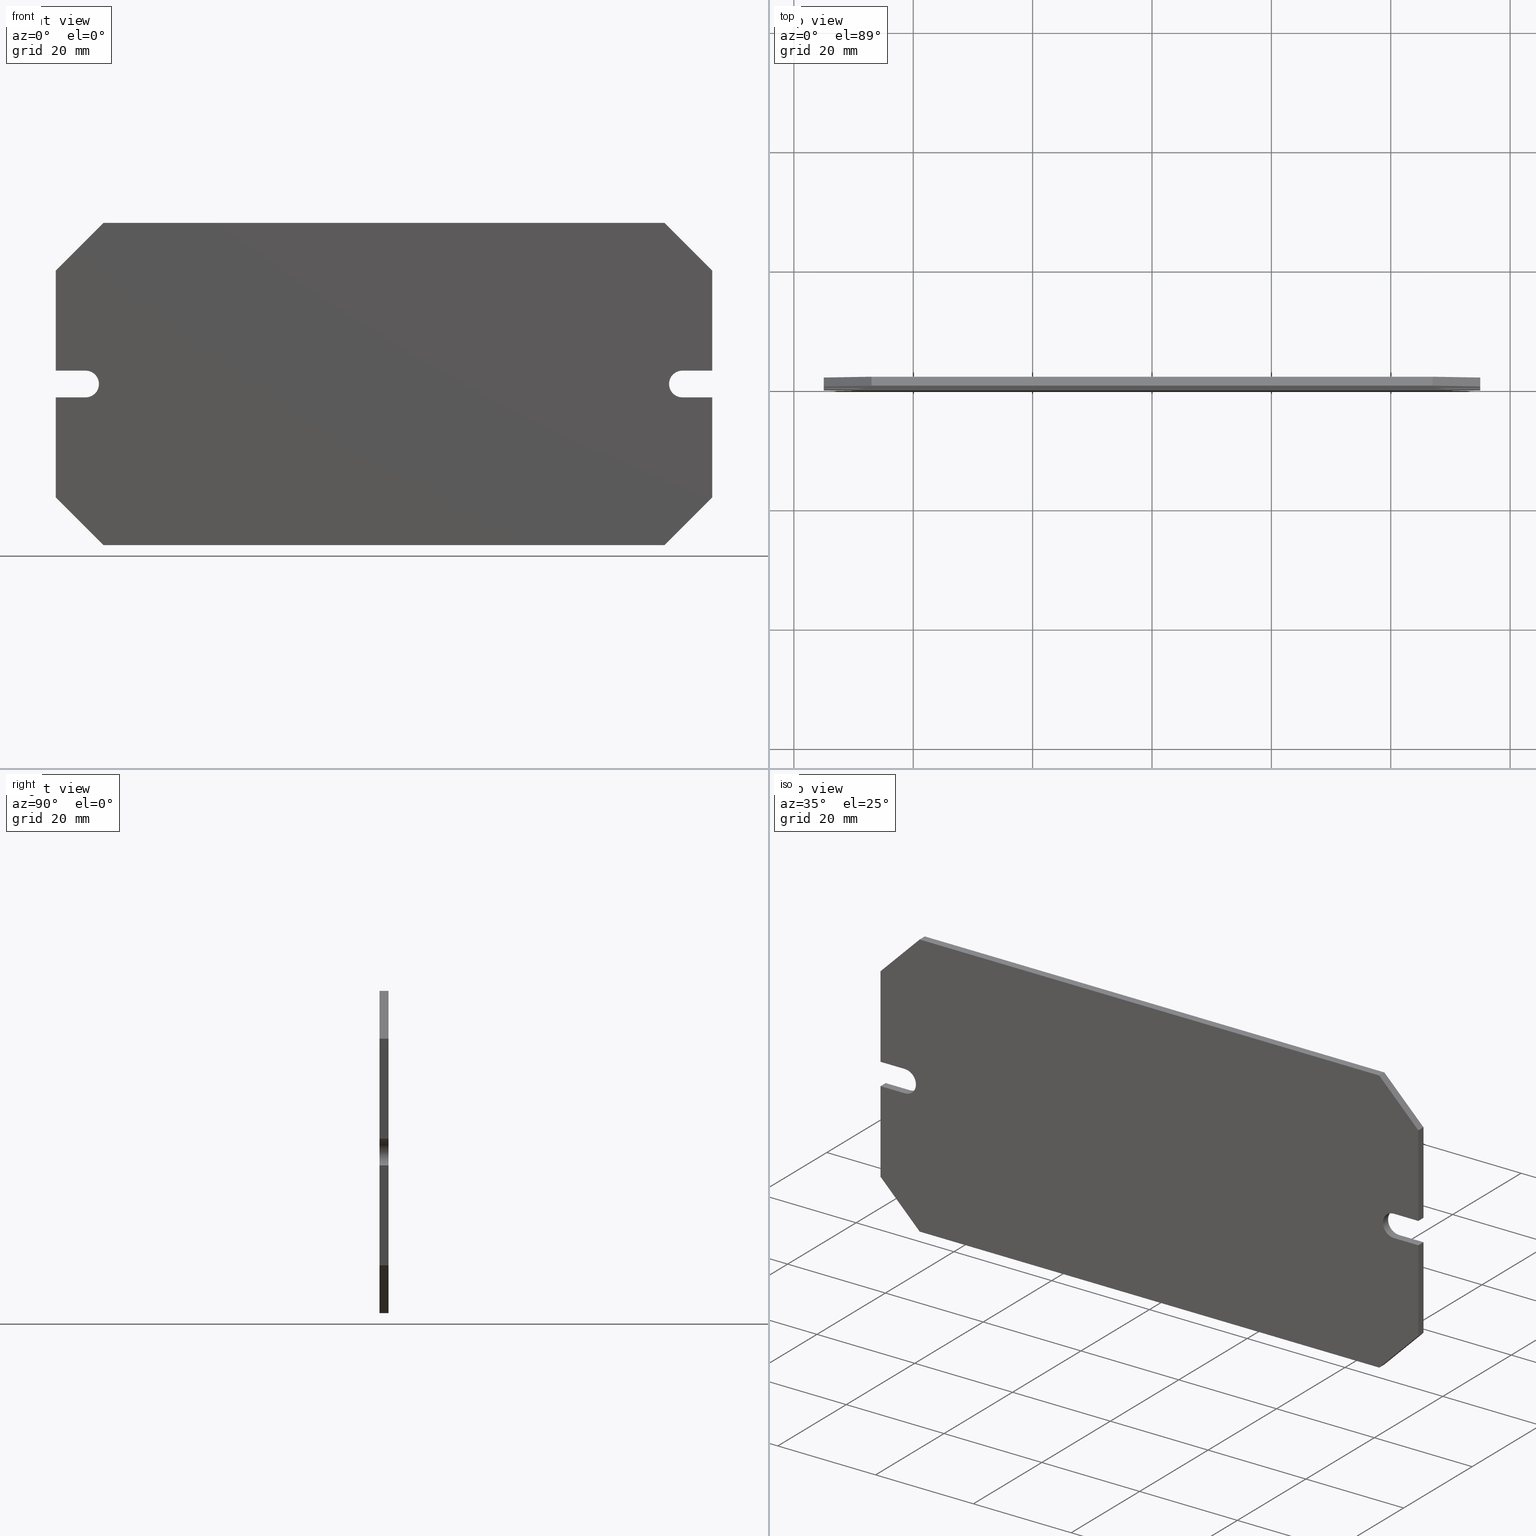
[diagram: canonical four-view strip — front | top / right | iso, engineering-drawing reading convention]
A machine part, canonical four-view strip (front | top / right | iso — engineering-drawing reading convention). The complete STEP part file that produces these views, byte-faithful:
ISO-10303-21;
HEADER;
FILE_DESCRIPTION (( 'STEP AP214' ),
    '1' );
FILE_NAME ('C-MP.STEP',
    '2010-02-17T13:13:29',
    ( 'KennethW' ),
    ( 'FIBOX' ),
    'SwSTEP 2.0',
    'SolidWorks 2009',
    '' );
FILE_SCHEMA (( 'AUTOMOTIVE_DESIGN' ));
ENDSEC;

DATA;
#1 = ORIENTED_EDGE ( 'NONE', *, *, #195, .F. ) ;
#2 = ORIENTED_EDGE ( 'NONE', *, *, #152, .F. ) ;
#3 = ORIENTED_EDGE ( 'NONE', *, *, #67, .F. ) ;
#4 = CLOSED_SHELL ( 'NONE', ( #48, #71, #55, #37, #13, #15, #98, #110, #107, #102, #125, #160, #139, #155, #207, #204, #172, #180 ) ) ;
#5 = ORIENTED_EDGE ( 'NONE', *, *, #85, .F. ) ;
#6 = ORIENTED_EDGE ( 'NONE', *, *, #96, .F. ) ;
#7 = ORIENTED_EDGE ( 'NONE', *, *, #23, .F. ) ;
#8 = ORIENTED_EDGE ( 'NONE', *, *, #30, .F. ) ;
#9 = ORIENTED_EDGE ( 'NONE', *, *, #47, .F. ) ;
#10 = ORIENTED_EDGE ( 'NONE', *, *, #50, .F. ) ;
#11 = EDGE_LOOP ( 'NONE', ( #10, #12, #1, #2, #165, #166, #167, #168, #169, #14, #5, #6, #7, #8, #9, #3 ) ) ;
#12 = ORIENTED_EDGE ( 'NONE', *, *, #181, .F. ) ;
#13 = ADVANCED_FACE ( 'NONE', ( #344 ), #343, .F. ) ;
#14 = ORIENTED_EDGE ( 'NONE', *, *, #93, .F. ) ;
#15 = ADVANCED_FACE ( 'NONE', ( #349 ), #348, .F. ) ;
#16 = ORIENTED_EDGE ( 'NONE', *, *, #34, .T. ) ;
#17 = ORIENTED_EDGE ( 'NONE', *, *, #23, .T. ) ;
#18 = EDGE_CURVE ( 'NONE', #41, #33, #374, .T. ) ;
#19 = EDGE_CURVE ( 'NONE', #33, #26, #338, .T. ) ;
#20 = ORIENTED_EDGE ( 'NONE', *, *, #42, .T. ) ;
#21 = EDGE_LOOP ( 'NONE', ( #17, #25, #24, #16 ) ) ;
#22 = EDGE_LOOP ( 'NONE', ( #97, #91, #73, #75 ) ) ;
#23 = EDGE_CURVE ( 'NONE', #29, #28, #334, .T. ) ;
#24 = ORIENTED_EDGE ( 'NONE', *, *, #19, .F. ) ;
#25 = ORIENTED_EDGE ( 'NONE', *, *, #27, .F. ) ;
#26 = VERTEX_POINT ( 'NONE', #330 ) ;
#27 = EDGE_CURVE ( 'NONE', #26, #28, #329, .T. ) ;
#28 = VERTEX_POINT ( 'NONE', #325 ) ;
#29 = VERTEX_POINT ( 'NONE', #324 ) ;
#30 = EDGE_CURVE ( 'NONE', #39, #29, #323, .T. ) ;
#31 = ORIENTED_EDGE ( 'NONE', *, *, #30, .T. ) ;
#32 = ORIENTED_EDGE ( 'NONE', *, *, #18, .F. ) ;
#33 = VERTEX_POINT ( 'NONE', #384 ) ;
#34 = EDGE_CURVE ( 'NONE', #33, #29, #383, .T. ) ;
#35 = ORIENTED_EDGE ( 'NONE', *, *, #34, .F. ) ;
#36 = ORIENTED_EDGE ( 'NONE', *, *, #68, .T. ) ;
#37 = ADVANCED_FACE ( 'NONE', ( #379 ), #377, .F. ) ;
#38 = EDGE_LOOP ( 'NONE', ( #31, #35, #32, #20 ) ) ;
#39 = VERTEX_POINT ( 'NONE', #368 ) ;
#40 = ORIENTED_EDGE ( 'NONE', *, *, #42, .F. ) ;
#41 = VERTEX_POINT ( 'NONE', #367 ) ;
#42 = EDGE_CURVE ( 'NONE', #41, #39, #366, .T. ) ;
#43 = EDGE_CURVE ( 'NONE', #64, #41, #362, .T. ) ;
#44 = ORIENTED_EDGE ( 'NONE', *, *, #43, .F. ) ;
#45 = ORIENTED_EDGE ( 'NONE', *, *, #47, .T. ) ;
#46 = EDGE_LOOP ( 'NONE', ( #45, #40, #44, #36 ) ) ;
#47 = EDGE_CURVE ( 'NONE', #62, #39, #358, .T. ) ;
#48 = ADVANCED_FACE ( 'NONE', ( #354 ), #353, .F. ) ;
#49 = ORIENTED_EDGE ( 'NONE', *, *, #50, .T. ) ;
#50 = EDGE_CURVE ( 'NONE', #51, #52, #277, .T. ) ;
#51 = VERTEX_POINT ( 'NONE', #250 ) ;
#52 = VERTEX_POINT ( 'NONE', #276 ) ;
#53 = ORIENTED_EDGE ( 'NONE', *, *, #58, .F. ) ;
#54 = ORIENTED_EDGE ( 'NONE', *, *, #58, .T. ) ;
#55 = ADVANCED_FACE ( 'NONE', ( #275 ), #274, .F. ) ;
#56 = ORIENTED_EDGE ( 'NONE', *, *, #74, .F. ) ;
#57 = VERTEX_POINT ( 'NONE', #266 ) ;
#58 = EDGE_CURVE ( 'NONE', #59, #52, #270, .T. ) ;
#59 = VERTEX_POINT ( 'NONE', #264 ) ;
#60 = EDGE_LOOP ( 'NONE', ( #49, #53, #56, #76 ) ) ;
#61 = MANIFOLD_SOLID_BREP ( 'NONE', #4 ) ;
#62 = VERTEX_POINT ( 'NONE', #299 ) ;
#63 = ORIENTED_EDGE ( 'NONE', *, *, #68, .F. ) ;
#64 = VERTEX_POINT ( 'NONE', #282 ) ;
#65 = EDGE_LOOP ( 'NONE', ( #66, #63, #72, #54 ) ) ;
#66 = ORIENTED_EDGE ( 'NONE', *, *, #67, .T. ) ;
#67 = EDGE_CURVE ( 'NONE', #52, #62, #289, .T. ) ;
#68 = EDGE_CURVE ( 'NONE', #64, #62, #295, .T. ) ;
#69 = EDGE_CURVE ( 'NONE', #59, #64, #297, .T. ) ;
#70 = EDGE_CURVE ( 'NONE', #57, #51, #286, .T. ) ;
#71 = ADVANCED_FACE ( 'NONE', ( #314 ), #319, .F. ) ;
#72 = ORIENTED_EDGE ( 'NONE', *, *, #69, .F. ) ;
#73 = ORIENTED_EDGE ( 'NONE', *, *, #78, .F. ) ;
#74 = EDGE_CURVE ( 'NONE', #57, #59, #316, .T. ) ;
#75 = ORIENTED_EDGE ( 'NONE', *, *, #27, .T. ) ;
#76 = ORIENTED_EDGE ( 'NONE', *, *, #70, .T. ) ;
#77 = VERTEX_POINT ( 'NONE', #490 ) ;
#78 = EDGE_CURVE ( 'NONE', #26, #90, #493, .T. ) ;
#79 = EDGE_CURVE ( 'NONE', #112, #80, #502, .T. ) ;
#80 = VERTEX_POINT ( 'NONE', #494 ) ;
#81 = ORIENTED_EDGE ( 'NONE', *, *, #82, .F. ) ;
#82 = EDGE_CURVE ( 'NONE', #77, #80, #500, .T. ) ;
#83 = EDGE_LOOP ( 'NONE', ( #84, #99, #108, #109 ) ) ;
#84 = ORIENTED_EDGE ( 'NONE', *, *, #85, .T. ) ;
#85 = EDGE_CURVE ( 'NONE', #95, #86, #503, .T. ) ;
#86 = VERTEX_POINT ( 'NONE', #534 ) ;
#87 = ORIENTED_EDGE ( 'NONE', *, *, #88, .F. ) ;
#88 = EDGE_CURVE ( 'NONE', #130, #117, #506, .T. ) ;
#89 = EDGE_CURVE ( 'NONE', #90, #95, #504, .T. ) ;
#90 = VERTEX_POINT ( 'NONE', #513 ) ;
#91 = ORIENTED_EDGE ( 'NONE', *, *, #89, .F. ) ;
#92 = ORIENTED_EDGE ( 'NONE', *, *, #79, .T. ) ;
#93 = EDGE_CURVE ( 'NONE', #86, #94, #516, .T. ) ;
#94 = VERTEX_POINT ( 'NONE', #510 ) ;
#95 = VERTEX_POINT ( 'NONE', #509 ) ;
#96 = EDGE_CURVE ( 'NONE', #28, #95, #535, .T. ) ;
#97 = ORIENTED_EDGE ( 'NONE', *, *, #96, .T. ) ;
#98 = ADVANCED_FACE ( 'NONE', ( #528 ), #527, .F. ) ;
#99 = ORIENTED_EDGE ( 'NONE', *, *, #115, .F. ) ;
#100 = VERTEX_POINT ( 'NONE', #521 ) ;
#101 = EDGE_LOOP ( 'NONE', ( #92, #81, #126, #145 ) ) ;
#102 = ADVANCED_FACE ( 'NONE', ( #520 ), #508, .F. ) ;
#103 = ORIENTED_EDGE ( 'NONE', *, *, #127, .T. ) ;
#104 = ORIENTED_EDGE ( 'NONE', *, *, #93, .T. ) ;
#105 = ORIENTED_EDGE ( 'NONE', *, *, #115, .T. ) ;
#106 = EDGE_LOOP ( 'NONE', ( #104, #129, #131, #105 ) ) ;
#107 = ADVANCED_FACE ( 'NONE', ( #536 ), #542, .F. ) ;
#108 = ORIENTED_EDGE ( 'NONE', *, *, #114, .F. ) ;
#109 = ORIENTED_EDGE ( 'NONE', *, *, #89, .T. ) ;
#110 = ADVANCED_FACE ( 'NONE', ( #543 ), #541, .F. ) ;
#111 = ORIENTED_EDGE ( 'NONE', *, *, #119, .T. ) ;
#112 = VERTEX_POINT ( 'NONE', #546 ) ;
#113 = ORIENTED_EDGE ( 'NONE', *, *, #116, .F. ) ;
#114 = EDGE_CURVE ( 'NONE', #90, #100, #550, .T. ) ;
#115 = EDGE_CURVE ( 'NONE', #100, #86, #596, .T. ) ;
#116 = EDGE_CURVE ( 'NONE', #117, #112, #602, .T. ) ;
#117 = VERTEX_POINT ( 'NONE', #591 ) ;
#118 = EDGE_LOOP ( 'NONE', ( #111, #113, #87, #103 ) ) ;
#119 = EDGE_CURVE ( 'NONE', #94, #112, #590, .T. ) ;
#120 = EDGE_CURVE ( 'NONE', #100, #130, #600, .T. ) ;
#121 = ORIENTED_EDGE ( 'NONE', *, *, #133, .F. ) ;
#122 = EDGE_CURVE ( 'NONE', #80, #143, #586, .T. ) ;
#123 = ORIENTED_EDGE ( 'NONE', *, *, #157, .F. ) ;
#124 = ORIENTED_EDGE ( 'NONE', *, *, #122, .T. ) ;
#125 = ADVANCED_FACE ( 'NONE', ( #582 ), #570, .F. ) ;
#126 = ORIENTED_EDGE ( 'NONE', *, *, #128, .F. ) ;
#127 = EDGE_CURVE ( 'NONE', #130, #94, #565, .T. ) ;
#128 = EDGE_CURVE ( 'NONE', #117, #77, #580, .T. ) ;
#129 = ORIENTED_EDGE ( 'NONE', *, *, #127, .F. ) ;
#130 = VERTEX_POINT ( 'NONE', #576 ) ;
#131 = ORIENTED_EDGE ( 'NONE', *, *, #120, .F. ) ;
#132 = EDGE_LOOP ( 'NONE', ( #134, #140, #220, #136 ) ) ;
#133 = EDGE_CURVE ( 'NONE', #158, #138, #575, .T. ) ;
#134 = ORIENTED_EDGE ( 'NONE', *, *, #224, .T. ) ;
#135 = ORIENTED_EDGE ( 'NONE', *, *, #157, .T. ) ;
#136 = ORIENTED_EDGE ( 'NONE', *, *, #137, .T. ) ;
#137 = EDGE_CURVE ( 'NONE', #138, #221, #571, .T. ) ;
#138 = VERTEX_POINT ( 'NONE', #558 ) ;
#139 = ADVANCED_FACE ( 'NONE', ( #557 ), #556, .F. ) ;
#140 = ORIENTED_EDGE ( 'NONE', *, *, #142, .F. ) ;
#141 = VERTEX_POINT ( 'NONE', #209 ) ;
#142 = EDGE_CURVE ( 'NONE', #141, #219, #214, .T. ) ;
#143 = VERTEX_POINT ( 'NONE', #215 ) ;
#144 = EDGE_LOOP ( 'NONE', ( #124, #123, #162, #163 ) ) ;
#145 = ORIENTED_EDGE ( 'NONE', *, *, #116, .T. ) ;
#146 = EDGE_LOOP ( 'NONE', ( #201, #197, #198, #200 ) ) ;
#147 = EDGE_CURVE ( 'NONE', #150, #156, #210, .T. ) ;
#148 = ORIENTED_EDGE ( 'NONE', *, *, #147, .F. ) ;
#149 = EDGE_CURVE ( 'NONE', #141, #150, #234, .T. ) ;
#150 = VERTEX_POINT ( 'NONE', #235 ) ;
#151 = ORIENTED_EDGE ( 'NONE', *, *, #142, .T. ) ;
#152 = EDGE_CURVE ( 'NONE', #219, #156, #239, .T. ) ;
#153 = ORIENTED_EDGE ( 'NONE', *, *, #152, .T. ) ;
#154 = EDGE_LOOP ( 'NONE', ( #153, #148, #206, #151 ) ) ;
#155 = ADVANCED_FACE ( 'NONE', ( #241 ), #240, .F. ) ;
#156 = VERTEX_POINT ( 'NONE', #237 ) ;
#157 = EDGE_CURVE ( 'NONE', #158, #143, #230, .T. ) ;
#158 = VERTEX_POINT ( 'NONE', #226 ) ;
#159 = ORIENTED_EDGE ( 'NONE', *, *, #208, .T. ) ;
#160 = ADVANCED_FACE ( 'NONE', ( #225 ), #306, .F. ) ;
#161 = EDGE_LOOP ( 'NONE', ( #159, #222, #121, #135 ) ) ;
#162 = ORIENTED_EDGE ( 'NONE', *, *, #164, .F. ) ;
#163 = ORIENTED_EDGE ( 'NONE', *, *, #82, .T. ) ;
#164 = EDGE_CURVE ( 'NONE', #77, #158, #416, .T. ) ;
#165 = ORIENTED_EDGE ( 'NONE', *, *, #224, .F. ) ;
#166 = ORIENTED_EDGE ( 'NONE', *, *, #208, .F. ) ;
#167 = ORIENTED_EDGE ( 'NONE', *, *, #122, .F. ) ;
#168 = ORIENTED_EDGE ( 'NONE', *, *, #79, .F. ) ;
#169 = ORIENTED_EDGE ( 'NONE', *, *, #119, .F. ) ;
#170 = ORIENTED_EDGE ( 'NONE', *, *, #69, .T. ) ;
#171 = ORIENTED_EDGE ( 'NONE', *, *, #205, .T. ) ;
#172 = ADVANCED_FACE ( 'NONE', ( #412 ), #410, .T. ) ;
#173 = ORIENTED_EDGE ( 'NONE', *, *, #128, .T. ) ;
#174 = ORIENTED_EDGE ( 'NONE', *, *, #19, .T. ) ;
#175 = ORIENTED_EDGE ( 'NONE', *, *, #181, .T. ) ;
#176 = ORIENTED_EDGE ( 'NONE', *, *, #74, .T. ) ;
#177 = ORIENTED_EDGE ( 'NONE', *, *, #149, .T. ) ;
#178 = ORIENTED_EDGE ( 'NONE', *, *, #203, .T. ) ;
#179 = ORIENTED_EDGE ( 'NONE', *, *, #185, .T. ) ;
#180 = ADVANCED_FACE ( 'NONE', ( #405 ), #411, .F. ) ;
#181 = EDGE_CURVE ( 'NONE', #202, #51, #402, .T. ) ;
#182 = ORIENTED_EDGE ( 'NONE', *, *, #18, .T. ) ;
#183 = ORIENTED_EDGE ( 'NONE', *, *, #185, .F. ) ;
#184 = ORIENTED_EDGE ( 'NONE', *, *, #223, .T. ) ;
#185 = EDGE_CURVE ( 'NONE', #199, #57, #396, .T. ) ;
#186 = EDGE_LOOP ( 'NONE', ( #176, #170, #188, #182, #174, #187, #193, #190, #191, #173, #194, #189, #184, #177, #178, #179 ) ) ;
#187 = ORIENTED_EDGE ( 'NONE', *, *, #78, .T. ) ;
#188 = ORIENTED_EDGE ( 'NONE', *, *, #43, .T. ) ;
#189 = ORIENTED_EDGE ( 'NONE', *, *, #133, .T. ) ;
#190 = ORIENTED_EDGE ( 'NONE', *, *, #120, .T. ) ;
#191 = ORIENTED_EDGE ( 'NONE', *, *, #88, .T. ) ;
#192 = ORIENTED_EDGE ( 'NONE', *, *, #70, .F. ) ;
#193 = ORIENTED_EDGE ( 'NONE', *, *, #114, .T. ) ;
#194 = ORIENTED_EDGE ( 'NONE', *, *, #164, .T. ) ;
#195 = EDGE_CURVE ( 'NONE', #156, #202, #392, .T. ) ;
#196 = EDGE_LOOP ( 'NONE', ( #175, #192, #183, #171 ) ) ;
#197 = ORIENTED_EDGE ( 'NONE', *, *, #205, .F. ) ;
#198 = ORIENTED_EDGE ( 'NONE', *, *, #203, .F. ) ;
#199 = VERTEX_POINT ( 'NONE', #387 ) ;
#200 = ORIENTED_EDGE ( 'NONE', *, *, #147, .T. ) ;
#201 = ORIENTED_EDGE ( 'NONE', *, *, #195, .T. ) ;
#202 = VERTEX_POINT ( 'NONE', #448 ) ;
#203 = EDGE_CURVE ( 'NONE', #150, #199, #447, .T. ) ;
#204 = ADVANCED_FACE ( 'NONE', ( #442 ), #441, .F. ) ;
#205 = EDGE_CURVE ( 'NONE', #199, #202, #436, .T. ) ;
#206 = ORIENTED_EDGE ( 'NONE', *, *, #149, .F. ) ;
#207 = ADVANCED_FACE ( 'NONE', ( #432 ), #431, .F. ) ;
#208 = EDGE_CURVE ( 'NONE', #143, #221, #426, .T. ) ;
#209 = CARTESIAN_POINT ( 'NONE',  ( -55.00000000000000000, 1.500000000000000000, -2.249999999999981300 ) ) ;
#210 = LINE ( 'NONE', #218, #217 ) ;
#211 = DIRECTION ( 'NONE',  ( -0.0000000000000000000, -1.000000000000000000, -0.0000000000000000000 ) ) ;
#212 = VECTOR ( 'NONE', #211, 1000.000000000000000 ) ;
#213 = CARTESIAN_POINT ( 'NONE',  ( -55.00000000000000000, 1.500000000000000000, -2.249999999999981300 ) ) ;
#214 = LINE ( 'NONE', #213, #212 ) ;
#215 = CARTESIAN_POINT ( 'NONE',  ( -46.99999999999997900, 0.0000000000000000000, -26.99999999999997900 ) ) ;
#216 = DIRECTION ( 'NONE',  ( -0.0000000000000000000, -1.000000000000000000, -0.0000000000000000000 ) ) ;
#217 = VECTOR ( 'NONE', #216, 1000.000000000000000 ) ;
#218 = CARTESIAN_POINT ( 'NONE',  ( -49.99999999999999300, 1.500000000000000000, -2.249999999999975600 ) ) ;
#219 = VERTEX_POINT ( 'NONE', #422 ) ;
#220 = ORIENTED_EDGE ( 'NONE', *, *, #223, .F. ) ;
#221 = VERTEX_POINT ( 'NONE', #421 ) ;
#222 = ORIENTED_EDGE ( 'NONE', *, *, #137, .F. ) ;
#223 = EDGE_CURVE ( 'NONE', #138, #141, #420, .T. ) ;
#224 = EDGE_CURVE ( 'NONE', #221, #219, #470, .T. ) ;
#225 = FACE_OUTER_BOUND ( 'NONE', #161, .T. ) ;
#226 = CARTESIAN_POINT ( 'NONE',  ( -46.99999999999997900, 1.500000000000000000, -26.99999999999997900 ) ) ;
#227 = DIRECTION ( 'NONE',  ( -0.0000000000000000000, -1.000000000000000000, -0.0000000000000000000 ) ) ;
#228 = VECTOR ( 'NONE', #227, 1000.000000000000000 ) ;
#229 = CARTESIAN_POINT ( 'NONE',  ( -46.99999999999997900, 1.500000000000000000, -26.99999999999997900 ) ) ;
#230 = LINE ( 'NONE', #229, #228 ) ;
#231 = DIRECTION ( 'NONE',  ( 1.000000000000000000, 0.0000000000000000000, 0.0000000000000000000 ) ) ;
#232 = VECTOR ( 'NONE', #231, 1000.000000000000000 ) ;
#233 = CARTESIAN_POINT ( 'NONE',  ( -55.00000000000000000, 1.500000000000000000, -2.249999999999981300 ) ) ;
#234 = LINE ( 'NONE', #233, #232 ) ;
#235 = CARTESIAN_POINT ( 'NONE',  ( -49.99999999999999300, 1.500000000000000000, -2.249999999999975600 ) ) ;
#236 = AXIS2_PLACEMENT_3D ( 'NONE', #245, #246, #238 ) ;
#237 = CARTESIAN_POINT ( 'NONE',  ( -49.99999999999999300, 0.0000000000000000000, -2.249999999999975600 ) ) ;
#238 = DIRECTION ( 'NONE',  ( -1.000000000000000000, 0.0000000000000000000, -0.0000000000000000000 ) ) ;
#239 = LINE ( 'NONE', #244, #243 ) ;
#240 = PLANE ( 'NONE',  #236 ) ;
#241 = FACE_OUTER_BOUND ( 'NONE', #154, .T. ) ;
#242 = DIRECTION ( 'NONE',  ( 1.000000000000000000, 0.0000000000000000000, 0.0000000000000000000 ) ) ;
#243 = VECTOR ( 'NONE', #242, 1000.000000000000000 ) ;
#244 = CARTESIAN_POINT ( 'NONE',  ( -55.00000000000000000, 0.0000000000000000000, -2.249999999999981300 ) ) ;
#245 = CARTESIAN_POINT ( 'NONE',  ( -55.00000000000000000, 1.500000000000000000, -2.249999999999981300 ) ) ;
#246 = DIRECTION ( 'NONE',  ( 0.0000000000000000000, 0.0000000000000000000, -1.000000000000000000 ) ) ;
#247 =( LENGTH_UNIT ( ) NAMED_UNIT ( * ) SI_UNIT ( .MILLI., .METRE. ) );
#248 = CARTESIAN_POINT ( 'NONE',  ( -46.99999999999997900, 1.500000000000000000, 26.99999999999997900 ) ) ;
#249 = AXIS2_PLACEMENT_3D ( 'NONE', #248, #278, #251 ) ;
#250 = CARTESIAN_POINT ( 'NONE',  ( -55.00000000000000000, 0.0000000000000000000, 2.249999999999981300 ) ) ;
#251 = DIRECTION ( 'NONE',  ( -1.000000000000000000, 0.0000000000000000000, -1.107270303814983800E-016 ) ) ;
#252 = DIRECTION ( 'NONE',  ( 0.0000000000000000000, 0.0000000000000000000, -1.000000000000000000 ) ) ;
#253 = MECHANICAL_DESIGN_GEOMETRIC_PRESENTATION_REPRESENTATION (  '', ( #255 ), #281 ) ;
#254 = PRESENTATION_LAYER_ASSIGNMENT (  '', '', ( #255 ) ) ;
#255 = STYLED_ITEM ( 'NONE', ( #256 ), #61 ) ;
#256 = PRESENTATION_STYLE_ASSIGNMENT (( #257 ) ) ;
#257 = SURFACE_STYLE_USAGE ( .BOTH. , #258 ) ;
#258 = SURFACE_SIDE_STYLE ('',( #271 ) ) ;
#259 = DIRECTION ( 'NONE',  ( -1.000000000000000000, 0.0000000000000000000, 2.602085213965208700E-016 ) ) ;
#260 =( NAMED_UNIT ( * ) SI_UNIT ( $, .STERADIAN. ) SOLID_ANGLE_UNIT ( ) );
#261 =( NAMED_UNIT ( * ) PLANE_ANGLE_UNIT ( ) SI_UNIT ( $, .RADIAN. ) );
#262 = CARTESIAN_POINT ( 'NONE',  ( -55.00000000000000000, 0.0000000000000000000, 2.249999999999981300 ) ) ;
#263 = COLOUR_RGB ( '',0.7529411764705882200, 0.7529411764705882200, 0.7529411764705882200 ) ;
#264 = CARTESIAN_POINT ( 'NONE',  ( -55.00000000000000000, 1.500000000000000000, 18.99999999999998200 ) ) ;
#265 = VECTOR ( 'NONE', #279, 1000.000000000000000 ) ;
#266 = CARTESIAN_POINT ( 'NONE',  ( -55.00000000000000000, 1.500000000000000000, 2.249999999999981300 ) ) ;
#267 = DIRECTION ( 'NONE',  ( -0.0000000000000000000, -1.000000000000000000, -0.0000000000000000000 ) ) ;
#268 = VECTOR ( 'NONE', #267, 1000.000000000000000 ) ;
#269 = CARTESIAN_POINT ( 'NONE',  ( -55.00000000000000000, 1.500000000000000000, 18.99999999999998200 ) ) ;
#270 = LINE ( 'NONE', #269, #268 ) ;
#271 = SURFACE_STYLE_FILL_AREA ( #272 ) ;
#272 = FILL_AREA_STYLE ('',( #273 ) ) ;
#273 = FILL_AREA_STYLE_COLOUR ( '', #263 ) ;
#274 = PLANE ( 'NONE',  #249 ) ;
#275 = FACE_OUTER_BOUND ( 'NONE', #46, .T. ) ;
#276 = CARTESIAN_POINT ( 'NONE',  ( -55.00000000000000000, 0.0000000000000000000, 18.99999999999998200 ) ) ;
#277 = LINE ( 'NONE', #262, #265 ) ;
#278 = DIRECTION ( 'NONE',  ( 1.107270303814983800E-016, 0.0000000000000000000, -1.000000000000000000 ) ) ;
#279 = DIRECTION ( 'NONE',  ( 0.0000000000000000000, 0.0000000000000000000, 1.000000000000000000 ) ) ;
#280 = UNCERTAINTY_MEASURE_WITH_UNIT (LENGTH_MEASURE( 1.000000000000000100E-005 ), #247, 'distance_accuracy_value', 'NONE');
#281 =( GEOMETRIC_REPRESENTATION_CONTEXT ( 3 ) GLOBAL_UNCERTAINTY_ASSIGNED_CONTEXT ( ( #280 ) ) GLOBAL_UNIT_ASSIGNED_CONTEXT ( ( #247, #261, #260 ) ) REPRESENTATION_CONTEXT ( 'NONE', 'WORKASPACE' ) );
#282 = CARTESIAN_POINT ( 'NONE',  ( -46.99999999999997900, 1.500000000000000000, 26.99999999999997900 ) ) ;
#283 = DIRECTION ( 'NONE',  ( -0.0000000000000000000, -1.000000000000000000, -0.0000000000000000000 ) ) ;
#284 = VECTOR ( 'NONE', #283, 1000.000000000000000 ) ;
#285 = CARTESIAN_POINT ( 'NONE',  ( -55.00000000000000000, 1.500000000000000000, 2.249999999999981300 ) ) ;
#286 = LINE ( 'NONE', #285, #284 ) ;
#287 = VECTOR ( 'NONE', #296, 999.9999999999998900 ) ;
#288 = CARTESIAN_POINT ( 'NONE',  ( -55.00000000000000000, 0.0000000000000000000, 18.99999999999998200 ) ) ;
#289 = LINE ( 'NONE', #288, #287 ) ;
#290 = DIRECTION ( 'NONE',  ( 0.7071067811865486800, 0.0000000000000000000, 0.7071067811865464600 ) ) ;
#291 = VECTOR ( 'NONE', #290, 999.9999999999998900 ) ;
#292 = CARTESIAN_POINT ( 'NONE',  ( -55.00000000000000000, 1.500000000000000000, 18.99999999999998200 ) ) ;
#293 = VECTOR ( 'NONE', #298, 1000.000000000000000 ) ;
#294 = CARTESIAN_POINT ( 'NONE',  ( -46.99999999999997900, 1.500000000000000000, 26.99999999999997900 ) ) ;
#295 = LINE ( 'NONE', #294, #293 ) ;
#296 = DIRECTION ( 'NONE',  ( 0.7071067811865486800, 0.0000000000000000000, 0.7071067811865464600 ) ) ;
#297 = LINE ( 'NONE', #292, #291 ) ;
#298 = DIRECTION ( 'NONE',  ( -0.0000000000000000000, -1.000000000000000000, -0.0000000000000000000 ) ) ;
#299 = CARTESIAN_POINT ( 'NONE',  ( -46.99999999999997900, 0.0000000000000000000, 26.99999999999997900 ) ) ;
#300 = CARTESIAN_POINT ( 'NONE',  ( 49.99999999999997900, 0.0000000000000000000, 5.422833677330016600E-015 ) ) ;
#301 = DIRECTION ( 'NONE',  ( 0.7071067811865464600, -0.0000000000000000000, 0.7071067811865486800 ) ) ;
#302 = CARTESIAN_POINT ( 'NONE',  ( -55.00000000000000000, 1.500000000000000000, -18.99999999999998200 ) ) ;
#303 = DIRECTION ( 'NONE',  ( -1.000000000000000000, 0.0000000000000000000, -2.602085213965208700E-016 ) ) ;
#304 = DIRECTION ( 'NONE',  ( -0.0000000000000000000, -1.000000000000000000, -0.0000000000000000000 ) ) ;
#305 = AXIS2_PLACEMENT_3D ( 'NONE', #302, #301, #311 ) ;
#306 = PLANE ( 'NONE',  #305 ) ;
#307 = DIRECTION ( 'NONE',  ( 0.7071067811865487900, 0.0000000000000000000, 0.7071067811865463500 ) ) ;
#308 = DIRECTION ( 'NONE',  ( 0.0000000000000000000, 0.0000000000000000000, 1.000000000000000000 ) ) ;
#309 = DIRECTION ( 'NONE',  ( 2.602085213965208700E-016, 0.0000000000000000000, -1.000000000000000000 ) ) ;
#310 = AXIS2_PLACEMENT_3D ( 'NONE', #300, #304, #308 ) ;
#311 = DIRECTION ( 'NONE',  ( 0.7071067811865486800, 0.0000000000000000000, -0.7071067811865464600 ) ) ;
#312 = CARTESIAN_POINT ( 'NONE',  ( -55.00000000000000000, 1.500000000000000000, 18.99999999999998200 ) ) ;
#313 = AXIS2_PLACEMENT_3D ( 'NONE', #312, #318, #317 ) ;
#314 = FACE_OUTER_BOUND ( 'NONE', #65, .T. ) ;
#315 = CARTESIAN_POINT ( 'NONE',  ( -55.00000000000000000, 1.500000000000000000, 2.249999999999981300 ) ) ;
#316 = LINE ( 'NONE', #315, #321 ) ;
#317 = DIRECTION ( 'NONE',  ( -0.7071067811865486800, 0.0000000000000000000, -0.7071067811865464600 ) ) ;
#318 = DIRECTION ( 'NONE',  ( 0.7071067811865464600, 0.0000000000000000000, -0.7071067811865486800 ) ) ;
#319 = PLANE ( 'NONE',  #313 ) ;
#320 = DIRECTION ( 'NONE',  ( 0.0000000000000000000, 0.0000000000000000000, 1.000000000000000000 ) ) ;
#321 = VECTOR ( 'NONE', #320, 1000.000000000000000 ) ;
#322 = CARTESIAN_POINT ( 'NONE',  ( 55.00000000000000000, 0.0000000000000000000, 18.99999999999999600 ) ) ;
#323 = LINE ( 'NONE', #322, #386 ) ;
#324 = CARTESIAN_POINT ( 'NONE',  ( 55.00000000000000000, 0.0000000000000000000, 18.99999999999999600 ) ) ;
#325 = CARTESIAN_POINT ( 'NONE',  ( 55.00000000000001400, 0.0000000000000000000, 2.249999999999967600 ) ) ;
#326 = DIRECTION ( 'NONE',  ( -0.0000000000000000000, -1.000000000000000000, -0.0000000000000000000 ) ) ;
#327 = VECTOR ( 'NONE', #326, 1000.000000000000000 ) ;
#328 = CARTESIAN_POINT ( 'NONE',  ( 55.00000000000001400, 1.500000000000000000, 2.249999999999967600 ) ) ;
#329 = LINE ( 'NONE', #328, #327 ) ;
#330 = CARTESIAN_POINT ( 'NONE',  ( 55.00000000000001400, 1.500000000000000000, 2.249999999999967600 ) ) ;
#331 = DIRECTION ( 'NONE',  ( 8.285246452426526800E-016, -0.0000000000000000000, -1.000000000000000000 ) ) ;
#332 = VECTOR ( 'NONE', #331, 1000.000000000000000 ) ;
#333 = CARTESIAN_POINT ( 'NONE',  ( 55.00000000000001400, 0.0000000000000000000, 2.249999999999967600 ) ) ;
#334 = LINE ( 'NONE', #333, #332 ) ;
#335 = DIRECTION ( 'NONE',  ( 8.285246452426526800E-016, -0.0000000000000000000, -1.000000000000000000 ) ) ;
#336 = VECTOR ( 'NONE', #335, 1000.000000000000000 ) ;
#337 = CARTESIAN_POINT ( 'NONE',  ( 55.00000000000001400, 1.500000000000000000, 2.249999999999967600 ) ) ;
#338 = LINE ( 'NONE', #337, #336 ) ;
#339 = AXIS2_PLACEMENT_3D ( 'NONE', #341, #340, #375 ) ;
#340 = DIRECTION ( 'NONE',  ( 2.602085213965208700E-016, -0.0000000000000000000, 1.000000000000000000 ) ) ;
#341 = CARTESIAN_POINT ( 'NONE',  ( 55.00000000000001400, 1.500000000000000000, 2.249999999999967600 ) ) ;
#342 = AXIS2_PLACEMENT_3D ( 'NONE', #347, #346, #345 ) ;
#343 = PLANE ( 'NONE',  #342 ) ;
#344 = FACE_OUTER_BOUND ( 'NONE', #21, .T. ) ;
#345 = DIRECTION ( 'NONE',  ( -8.285246452426525800E-016, 0.0000000000000000000, 1.000000000000000000 ) ) ;
#346 = DIRECTION ( 'NONE',  ( -1.000000000000000000, 0.0000000000000000000, -8.285246452426525800E-016 ) ) ;
#347 = CARTESIAN_POINT ( 'NONE',  ( 55.00000000000001400, 1.500000000000000000, 2.249999999999967600 ) ) ;
#348 = PLANE ( 'NONE',  #339 ) ;
#349 = FACE_OUTER_BOUND ( 'NONE', #22, .T. ) ;
#350 = DIRECTION ( 'NONE',  ( 1.000000000000000000, 0.0000000000000000000, 0.0000000000000000000 ) ) ;
#351 = CARTESIAN_POINT ( 'NONE',  ( -55.00000000000000000, 1.500000000000000000, 2.249999999999981300 ) ) ;
#352 = AXIS2_PLACEMENT_3D ( 'NONE', #351, #350, #252 ) ;
#353 = PLANE ( 'NONE',  #352 ) ;
#354 = FACE_OUTER_BOUND ( 'NONE', #60, .T. ) ;
#355 = DIRECTION ( 'NONE',  ( 1.000000000000000000, 0.0000000000000000000, 1.107270303814983800E-016 ) ) ;
#356 = VECTOR ( 'NONE', #355, 1000.000000000000000 ) ;
#357 = CARTESIAN_POINT ( 'NONE',  ( -46.99999999999997900, 0.0000000000000000000, 26.99999999999997900 ) ) ;
#358 = LINE ( 'NONE', #357, #356 ) ;
#359 = DIRECTION ( 'NONE',  ( 1.000000000000000000, 0.0000000000000000000, 1.107270303814983800E-016 ) ) ;
#360 = VECTOR ( 'NONE', #359, 1000.000000000000000 ) ;
#361 = CARTESIAN_POINT ( 'NONE',  ( -46.99999999999997900, 1.500000000000000000, 26.99999999999997900 ) ) ;
#362 = LINE ( 'NONE', #361, #360 ) ;
#363 = DIRECTION ( 'NONE',  ( -0.0000000000000000000, -1.000000000000000000, -0.0000000000000000000 ) ) ;
#364 = VECTOR ( 'NONE', #363, 1000.000000000000000 ) ;
#365 = CARTESIAN_POINT ( 'NONE',  ( 46.99999999999997900, 1.500000000000000000, 26.99999999999998900 ) ) ;
#366 = LINE ( 'NONE', #365, #364 ) ;
#367 = CARTESIAN_POINT ( 'NONE',  ( 46.99999999999997900, 1.500000000000000000, 26.99999999999998900 ) ) ;
#368 = CARTESIAN_POINT ( 'NONE',  ( 46.99999999999997900, 0.0000000000000000000, 26.99999999999998900 ) ) ;
#369 = DIRECTION ( 'NONE',  ( -0.7071067811865487900, 0.0000000000000000000, 0.7071067811865463500 ) ) ;
#370 = DIRECTION ( 'NONE',  ( -0.7071067811865463500, 0.0000000000000000000, -0.7071067811865487900 ) ) ;
#371 = DIRECTION ( 'NONE',  ( 0.7071067811865487900, -0.0000000000000000000, -0.7071067811865463500 ) ) ;
#372 = VECTOR ( 'NONE', #371, 1000.000000000000000 ) ;
#373 = CARTESIAN_POINT ( 'NONE',  ( 55.00000000000000000, 1.500000000000000000, 18.99999999999999600 ) ) ;
#374 = LINE ( 'NONE', #373, #372 ) ;
#375 = DIRECTION ( 'NONE',  ( 1.000000000000000000, 0.0000000000000000000, -2.602085213965208700E-016 ) ) ;
#376 = AXIS2_PLACEMENT_3D ( 'NONE', #378, #370, #369 ) ;
#377 = PLANE ( 'NONE',  #376 ) ;
#378 = CARTESIAN_POINT ( 'NONE',  ( 55.00000000000000000, 1.500000000000000000, 18.99999999999999600 ) ) ;
#379 = FACE_OUTER_BOUND ( 'NONE', #38, .T. ) ;
#380 = DIRECTION ( 'NONE',  ( -0.0000000000000000000, -1.000000000000000000, -0.0000000000000000000 ) ) ;
#381 = VECTOR ( 'NONE', #380, 1000.000000000000000 ) ;
#382 = CARTESIAN_POINT ( 'NONE',  ( 55.00000000000000000, 1.500000000000000000, 18.99999999999999600 ) ) ;
#383 = LINE ( 'NONE', #382, #381 ) ;
#384 = CARTESIAN_POINT ( 'NONE',  ( 55.00000000000000000, 1.500000000000000000, 18.99999999999999600 ) ) ;
#385 = DIRECTION ( 'NONE',  ( 0.7071067811865487900, -0.0000000000000000000, -0.7071067811865463500 ) ) ;
#386 = VECTOR ( 'NONE', #385, 1000.000000000000000 ) ;
#387 = CARTESIAN_POINT ( 'NONE',  ( -49.99999999999999300, 1.500000000000000000, 2.249999999999981300 ) ) ;
#388 = DIRECTION ( 'NONE',  ( 0.0000000000000000000, 0.0000000000000000000, -1.000000000000000000 ) ) ;
#389 = DIRECTION ( 'NONE',  ( 0.0000000000000000000, -1.000000000000000000, 0.0000000000000000000 ) ) ;
#390 = CARTESIAN_POINT ( 'NONE',  ( -49.99999999999999300, 0.0000000000000000000, 1.766889721555378600E-014 ) ) ;
#391 = AXIS2_PLACEMENT_3D ( 'NONE', #390, #389, #388 ) ;
#392 = CIRCLE ( 'NONE', #391, 2.249999999999976000 ) ;
#393 = DIRECTION ( 'NONE',  ( -1.000000000000000000, -0.0000000000000000000, -0.0000000000000000000 ) ) ;
#394 = VECTOR ( 'NONE', #393, 1000.000000000000000 ) ;
#395 = CARTESIAN_POINT ( 'NONE',  ( -55.00000000000000000, 1.500000000000000000, 2.249999999999981300 ) ) ;
#396 = LINE ( 'NONE', #395, #394 ) ;
#397 = DIRECTION ( 'NONE',  ( -1.000000000000000000, -0.0000000000000000000, -0.0000000000000000000 ) ) ;
#398 = VECTOR ( 'NONE', #397, 1000.000000000000000 ) ;
#399 = CARTESIAN_POINT ( 'NONE',  ( -55.00000000000000000, 0.0000000000000000000, 2.249999999999981300 ) ) ;
#400 = DIRECTION ( 'NONE',  ( 0.0000000000000000000, -0.0000000000000000000, 1.000000000000000000 ) ) ;
#401 = DIRECTION ( 'NONE',  ( 0.0000000000000000000, 1.000000000000000000, 0.0000000000000000000 ) ) ;
#402 = LINE ( 'NONE', #399, #398 ) ;
#403 = CARTESIAN_POINT ( 'NONE',  ( 49.99999999999997900, 0.0000000000000000000, 5.422833677330016600E-015 ) ) ;
#404 = AXIS2_PLACEMENT_3D ( 'NONE', #403, #401, #400 ) ;
#405 = FACE_OUTER_BOUND ( 'NONE', #11, .T. ) ;
#406 = DIRECTION ( 'NONE',  ( 0.0000000000000000000, -0.0000000000000000000, 1.000000000000000000 ) ) ;
#407 = DIRECTION ( 'NONE',  ( 0.0000000000000000000, 1.000000000000000000, 0.0000000000000000000 ) ) ;
#408 = CARTESIAN_POINT ( 'NONE',  ( 49.99999999999997900, 1.500000000000000000, 5.422833677330016600E-015 ) ) ;
#409 = AXIS2_PLACEMENT_3D ( 'NONE', #408, #407, #406 ) ;
#410 = PLANE ( 'NONE',  #409 ) ;
#411 = PLANE ( 'NONE',  #404 ) ;
#412 = FACE_OUTER_BOUND ( 'NONE', #186, .T. ) ;
#413 = DIRECTION ( 'NONE',  ( -1.000000000000000000, -0.0000000000000000000, 1.107270303814983800E-016 ) ) ;
#414 = VECTOR ( 'NONE', #413, 1000.000000000000000 ) ;
#415 = CARTESIAN_POINT ( 'NONE',  ( -46.99999999999997900, 1.500000000000000000, -26.99999999999997900 ) ) ;
#416 = LINE ( 'NONE', #415, #414 ) ;
#417 = DIRECTION ( 'NONE',  ( -0.0000000000000000000, -0.0000000000000000000, 1.000000000000000000 ) ) ;
#418 = VECTOR ( 'NONE', #417, 1000.000000000000000 ) ;
#419 = CARTESIAN_POINT ( 'NONE',  ( -55.00000000000000000, 1.500000000000000000, -2.249999999999981300 ) ) ;
#420 = LINE ( 'NONE', #419, #418 ) ;
#421 = CARTESIAN_POINT ( 'NONE',  ( -55.00000000000000000, 0.0000000000000000000, -18.99999999999998200 ) ) ;
#422 = CARTESIAN_POINT ( 'NONE',  ( -55.00000000000000000, 0.0000000000000000000, -2.249999999999981300 ) ) ;
#423 = DIRECTION ( 'NONE',  ( -0.7071067811865486800, -0.0000000000000000000, 0.7071067811865464600 ) ) ;
#424 = VECTOR ( 'NONE', #423, 999.9999999999998900 ) ;
#425 = CARTESIAN_POINT ( 'NONE',  ( -55.00000000000000000, 0.0000000000000000000, -18.99999999999998200 ) ) ;
#426 = LINE ( 'NONE', #425, #424 ) ;
#427 = DIRECTION ( 'NONE',  ( 0.0000000000000000000, 0.0000000000000000000, -1.000000000000000000 ) ) ;
#428 = DIRECTION ( 'NONE',  ( -0.0000000000000000000, -1.000000000000000000, -0.0000000000000000000 ) ) ;
#429 = CARTESIAN_POINT ( 'NONE',  ( -49.99999999999999300, 1.500000000000000000, 1.766889721555378600E-014 ) ) ;
#430 = AXIS2_PLACEMENT_3D ( 'NONE', #429, #428, #427 ) ;
#431 = CYLINDRICAL_SURFACE ( 'NONE', #430, 2.249999999999976000 ) ;
#432 = FACE_OUTER_BOUND ( 'NONE', #146, .T. ) ;
#433 = DIRECTION ( 'NONE',  ( -0.0000000000000000000, -1.000000000000000000, -0.0000000000000000000 ) ) ;
#434 = VECTOR ( 'NONE', #433, 1000.000000000000000 ) ;
#435 = CARTESIAN_POINT ( 'NONE',  ( -49.99999999999999300, 1.500000000000000000, 2.249999999999981300 ) ) ;
#436 = LINE ( 'NONE', #435, #434 ) ;
#437 = DIRECTION ( 'NONE',  ( 1.000000000000000000, 0.0000000000000000000, -0.0000000000000000000 ) ) ;
#438 = DIRECTION ( 'NONE',  ( 0.0000000000000000000, 0.0000000000000000000, 1.000000000000000000 ) ) ;
#439 = CARTESIAN_POINT ( 'NONE',  ( -55.00000000000000000, 1.500000000000000000, 2.249999999999981300 ) ) ;
#440 = AXIS2_PLACEMENT_3D ( 'NONE', #439, #438, #437 ) ;
#441 = PLANE ( 'NONE',  #440 ) ;
#442 = FACE_OUTER_BOUND ( 'NONE', #196, .T. ) ;
#443 = DIRECTION ( 'NONE',  ( 0.0000000000000000000, 0.0000000000000000000, -1.000000000000000000 ) ) ;
#444 = DIRECTION ( 'NONE',  ( 0.0000000000000000000, -1.000000000000000000, 0.0000000000000000000 ) ) ;
#445 = CARTESIAN_POINT ( 'NONE',  ( -49.99999999999999300, 1.500000000000000000, 1.766889721555378600E-014 ) ) ;
#446 = AXIS2_PLACEMENT_3D ( 'NONE', #445, #444, #443 ) ;
#447 = CIRCLE ( 'NONE', #446, 2.249999999999993300 ) ;
#448 = CARTESIAN_POINT ( 'NONE',  ( -49.99999999999999300, 0.0000000000000000000, 2.249999999999981300 ) ) ;
#449 =( LENGTH_UNIT ( ) NAMED_UNIT ( * ) SI_UNIT ( .MILLI., .METRE. ) );
#450 = MECHANICAL_DESIGN_GEOMETRIC_PRESENTATION_REPRESENTATION (  '', ( #452 ), #475 ) ;
#451 = PRESENTATION_LAYER_ASSIGNMENT (  '', '', ( #452 ) ) ;
#452 = STYLED_ITEM ( 'NONE', ( #453 ), #460 ) ;
#453 = PRESENTATION_STYLE_ASSIGNMENT (( #454 ) ) ;
#454 = SURFACE_STYLE_USAGE ( .BOTH. , #455 ) ;
#455 = SURFACE_SIDE_STYLE ('',( #456 ) ) ;
#456 = SURFACE_STYLE_FILL_AREA ( #457 ) ;
#457 = FILL_AREA_STYLE ('',( #458 ) ) ;
#458 = FILL_AREA_STYLE_COLOUR ( '', #459 ) ;
#459 = COLOUR_RGB ( '',0.7529411764705882200, 0.7529411764705882200, 0.7529411764705882200 ) ;
#460 = ADVANCED_BREP_SHAPE_REPRESENTATION ( 'C-MP', ( #61, #466 ), #461 ) ;
#461 =( GEOMETRIC_REPRESENTATION_CONTEXT ( 3 ) GLOBAL_UNCERTAINTY_ASSIGNED_CONTEXT ( ( #462 ) ) GLOBAL_UNIT_ASSIGNED_CONTEXT ( ( #465, #464, #463 ) ) REPRESENTATION_CONTEXT ( 'NONE', 'WORKASPACE' ) );
#462 = UNCERTAINTY_MEASURE_WITH_UNIT (LENGTH_MEASURE( 1.000000000000000100E-005 ), #465, 'distance_accuracy_value', 'NONE');
#463 =( NAMED_UNIT ( * ) SI_UNIT ( $, .STERADIAN. ) SOLID_ANGLE_UNIT ( ) );
#464 =( NAMED_UNIT ( * ) PLANE_ANGLE_UNIT ( ) SI_UNIT ( $, .RADIAN. ) );
#465 =( LENGTH_UNIT ( ) NAMED_UNIT ( * ) SI_UNIT ( .MILLI., .METRE. ) );
#466 = AXIS2_PLACEMENT_3D ( 'NONE', #474, #473, #472 ) ;
#467 = DIRECTION ( 'NONE',  ( -0.0000000000000000000, -0.0000000000000000000, 1.000000000000000000 ) ) ;
#468 = VECTOR ( 'NONE', #467, 1000.000000000000000 ) ;
#469 = CARTESIAN_POINT ( 'NONE',  ( -55.00000000000000000, 0.0000000000000000000, -2.249999999999981300 ) ) ;
#470 = LINE ( 'NONE', #469, #468 ) ;
#471 = APPLICATION_CONTEXT ( 'automotive_design' ) ;
#472 = DIRECTION ( 'NONE',  ( 1.000000000000000000, 0.0000000000000000000, 0.0000000000000000000 ) ) ;
#473 = DIRECTION ( 'NONE',  ( 0.0000000000000000000, 0.0000000000000000000, 1.000000000000000000 ) ) ;
#474 = CARTESIAN_POINT ( 'NONE',  ( 0.0000000000000000000, 0.0000000000000000000, 0.0000000000000000000 ) ) ;
#475 =( GEOMETRIC_REPRESENTATION_CONTEXT ( 3 ) GLOBAL_UNCERTAINTY_ASSIGNED_CONTEXT ( ( #476 ) ) GLOBAL_UNIT_ASSIGNED_CONTEXT ( ( #449, #478, #477 ) ) REPRESENTATION_CONTEXT ( 'NONE', 'WORKASPACE' ) );
#476 = UNCERTAINTY_MEASURE_WITH_UNIT (LENGTH_MEASURE( 1.000000000000000100E-005 ), #449, 'distance_accuracy_value', 'NONE');
#477 =( NAMED_UNIT ( * ) SI_UNIT ( $, .STERADIAN. ) SOLID_ANGLE_UNIT ( ) );
#478 =( NAMED_UNIT ( * ) PLANE_ANGLE_UNIT ( ) SI_UNIT ( $, .RADIAN. ) );
#479 = PRODUCT_DEFINITION_SHAPE ( 'NONE', 'NONE',  #482 ) ;
#480 = PRODUCT_RELATED_PRODUCT_CATEGORY ( 'part', '', ( #487 ) ) ;
#481 = PRODUCT_DEFINITION_FORMATION_WITH_SPECIFIED_SOURCE ( 'ANY', '', #487, .NOT_KNOWN. ) ;
#482 = PRODUCT_DEFINITION ( 'UNKNOWN', '', #481, #483 ) ;
#483 = PRODUCT_DEFINITION_CONTEXT ( 'detailed design', #485, 'design' ) ;
#484 = APPLICATION_PROTOCOL_DEFINITION ( 'draft international standard', 'automotive_design', 1998, #485 ) ;
#485 = APPLICATION_CONTEXT ( 'automotive_design' ) ;
#486 = SHAPE_DEFINITION_REPRESENTATION ( #479, #460 ) ;
#487 = PRODUCT ( 'C-MP', 'C-MP', '', ( #488 ) ) ;
#488 = PRODUCT_CONTEXT ( 'NONE', #471, 'mechanical' ) ;
#489 = APPLICATION_PROTOCOL_DEFINITION ( 'draft international standard', 'automotive_design', 1998, #471 ) ;
#490 = CARTESIAN_POINT ( 'NONE',  ( 46.99999999999997900, 1.500000000000000000, -26.99999999999998900 ) ) ;
#491 = VECTOR ( 'NONE', #259, 1000.000000000000000 ) ;
#492 = CARTESIAN_POINT ( 'NONE',  ( 55.00000000000001400, 1.500000000000000000, 2.249999999999967600 ) ) ;
#493 = LINE ( 'NONE', #492, #491 ) ;
#494 = CARTESIAN_POINT ( 'NONE',  ( 46.99999999999997900, 0.0000000000000000000, -26.99999999999998900 ) ) ;
#495 = DIRECTION ( 'NONE',  ( -0.7071067811865487900, 0.0000000000000000000, -0.7071067811865463500 ) ) ;
#496 = VECTOR ( 'NONE', #495, 1000.000000000000000 ) ;
#497 = DIRECTION ( 'NONE',  ( -0.0000000000000000000, -1.000000000000000000, -0.0000000000000000000 ) ) ;
#498 = VECTOR ( 'NONE', #497, 1000.000000000000000 ) ;
#499 = CARTESIAN_POINT ( 'NONE',  ( 46.99999999999997900, 1.500000000000000000, -26.99999999999998900 ) ) ;
#500 = LINE ( 'NONE', #499, #498 ) ;
#501 = CARTESIAN_POINT ( 'NONE',  ( 55.00000000000000000, 0.0000000000000000000, -18.99999999999999600 ) ) ;
#502 = LINE ( 'NONE', #501, #496 ) ;
#503 = CIRCLE ( 'NONE', #310, 2.249999999999974200 ) ;
#504 = LINE ( 'NONE', #532, #514 ) ;
#505 = VECTOR ( 'NONE', #522, 1000.000000000000000 ) ;
#506 = LINE ( 'NONE', #507, #505 ) ;
#507 = CARTESIAN_POINT ( 'NONE',  ( 55.00000000000001400, 1.500000000000000000, -2.249999999999967600 ) ) ;
#508 = PLANE ( 'NONE',  #523 ) ;
#509 = CARTESIAN_POINT ( 'NONE',  ( 50.00000000000000700, 0.0000000000000000000, 2.249999999999974700 ) ) ;
#510 = CARTESIAN_POINT ( 'NONE',  ( 55.00000000000001400, 0.0000000000000000000, -2.249999999999967600 ) ) ;
#511 = DIRECTION ( 'NONE',  ( 1.000000000000000000, -0.0000000000000000000, 2.602085213965208700E-016 ) ) ;
#512 = VECTOR ( 'NONE', #511, 1000.000000000000000 ) ;
#513 = CARTESIAN_POINT ( 'NONE',  ( 50.00000000000000700, 1.500000000000000000, 2.249999999999974700 ) ) ;
#514 = VECTOR ( 'NONE', #533, 1000.000000000000000 ) ;
#515 = CARTESIAN_POINT ( 'NONE',  ( 55.00000000000001400, 0.0000000000000000000, -2.249999999999967600 ) ) ;
#516 = LINE ( 'NONE', #515, #512 ) ;
#517 = DIRECTION ( 'NONE',  ( 0.0000000000000000000, 0.0000000000000000000, -1.000000000000000000 ) ) ;
#518 = DIRECTION ( 'NONE',  ( -0.0000000000000000000, -1.000000000000000000, -0.0000000000000000000 ) ) ;
#519 = CARTESIAN_POINT ( 'NONE',  ( 49.99999999999997900, 1.500000000000000000, 5.422833677330016600E-015 ) ) ;
#520 = FACE_OUTER_BOUND ( 'NONE', #101, .T. ) ;
#521 = CARTESIAN_POINT ( 'NONE',  ( 50.00000000000000700, 1.500000000000000000, -2.249999999999968900 ) ) ;
#522 = DIRECTION ( 'NONE',  ( -8.285246452426526800E-016, 0.0000000000000000000, -1.000000000000000000 ) ) ;
#523 = AXIS2_PLACEMENT_3D ( 'NONE', #525, #524, #307 ) ;
#524 = DIRECTION ( 'NONE',  ( -0.7071067811865463500, 0.0000000000000000000, 0.7071067811865487900 ) ) ;
#525 = CARTESIAN_POINT ( 'NONE',  ( 55.00000000000000000, 1.500000000000000000, -18.99999999999999600 ) ) ;
#526 = AXIS2_PLACEMENT_3D ( 'NONE', #519, #518, #517 ) ;
#527 = CYLINDRICAL_SURFACE ( 'NONE', #526, 2.249999999999974200 ) ;
#528 = FACE_OUTER_BOUND ( 'NONE', #83, .T. ) ;
#529 = DIRECTION ( 'NONE',  ( -1.000000000000000000, 0.0000000000000000000, 2.602085213965208700E-016 ) ) ;
#530 = VECTOR ( 'NONE', #529, 1000.000000000000000 ) ;
#531 = CARTESIAN_POINT ( 'NONE',  ( 55.00000000000001400, 0.0000000000000000000, 2.249999999999967600 ) ) ;
#532 = CARTESIAN_POINT ( 'NONE',  ( 50.00000000000000700, 1.500000000000000000, 2.249999999999974700 ) ) ;
#533 = DIRECTION ( 'NONE',  ( -0.0000000000000000000, -1.000000000000000000, -0.0000000000000000000 ) ) ;
#534 = CARTESIAN_POINT ( 'NONE',  ( 50.00000000000000700, 0.0000000000000000000, -2.249999999999968900 ) ) ;
#535 = LINE ( 'NONE', #531, #530 ) ;
#536 = FACE_OUTER_BOUND ( 'NONE', #118, .T. ) ;
#537 = DIRECTION ( 'NONE',  ( 8.285246452426525800E-016, 0.0000000000000000000, 1.000000000000000000 ) ) ;
#538 = DIRECTION ( 'NONE',  ( -1.000000000000000000, 0.0000000000000000000, 8.285246452426525800E-016 ) ) ;
#539 = CARTESIAN_POINT ( 'NONE',  ( 55.00000000000001400, 1.500000000000000000, -2.249999999999967600 ) ) ;
#540 = AXIS2_PLACEMENT_3D ( 'NONE', #539, #309, #303 ) ;
#541 = PLANE ( 'NONE',  #540 ) ;
#542 = PLANE ( 'NONE',  #544 ) ;
#543 = FACE_OUTER_BOUND ( 'NONE', #106, .T. ) ;
#544 = AXIS2_PLACEMENT_3D ( 'NONE', #545, #538, #537 ) ;
#545 = CARTESIAN_POINT ( 'NONE',  ( 55.00000000000001400, 1.500000000000000000, -2.249999999999967600 ) ) ;
#546 = CARTESIAN_POINT ( 'NONE',  ( 55.00000000000000000, 0.0000000000000000000, -18.99999999999999600 ) ) ;
#547 = DIRECTION ( 'NONE',  ( 0.0000000000000000000, 0.0000000000000000000, 1.000000000000000000 ) ) ;
#548 = DIRECTION ( 'NONE',  ( -0.0000000000000000000, -1.000000000000000000, -0.0000000000000000000 ) ) ;
#549 = CARTESIAN_POINT ( 'NONE',  ( 49.99999999999997900, 1.500000000000000000, 5.422833677330016600E-015 ) ) ;
#550 = CIRCLE ( 'NONE', #551, 2.249999999999968900 ) ;
#551 = AXIS2_PLACEMENT_3D ( 'NONE', #549, #548, #547 ) ;
#552 = DIRECTION ( 'NONE',  ( 0.0000000000000000000, 0.0000000000000000000, -1.000000000000000000 ) ) ;
#553 = DIRECTION ( 'NONE',  ( 1.000000000000000000, -0.0000000000000000000, 0.0000000000000000000 ) ) ;
#554 = CARTESIAN_POINT ( 'NONE',  ( -55.00000000000000000, 1.500000000000000000, -2.249999999999981300 ) ) ;
#555 = AXIS2_PLACEMENT_3D ( 'NONE', #554, #553, #552 ) ;
#556 = PLANE ( 'NONE',  #555 ) ;
#557 = FACE_OUTER_BOUND ( 'NONE', #132, .T. ) ;
#558 = CARTESIAN_POINT ( 'NONE',  ( -55.00000000000000000, 1.500000000000000000, -18.99999999999998200 ) ) ;
#559 = DIRECTION ( 'NONE',  ( -0.0000000000000000000, -1.000000000000000000, -0.0000000000000000000 ) ) ;
#560 = VECTOR ( 'NONE', #559, 1000.000000000000000 ) ;
#561 = CARTESIAN_POINT ( 'NONE',  ( -55.00000000000000000, 1.500000000000000000, -18.99999999999998200 ) ) ;
#562 = DIRECTION ( 'NONE',  ( -0.0000000000000000000, -1.000000000000000000, -0.0000000000000000000 ) ) ;
#563 = VECTOR ( 'NONE', #562, 1000.000000000000000 ) ;
#564 = CARTESIAN_POINT ( 'NONE',  ( 55.00000000000001400, 1.500000000000000000, -2.249999999999967600 ) ) ;
#565 = LINE ( 'NONE', #564, #563 ) ;
#566 = DIRECTION ( 'NONE',  ( 1.000000000000000000, 0.0000000000000000000, -1.107270303814983800E-016 ) ) ;
#567 = DIRECTION ( 'NONE',  ( 1.107270303814983800E-016, -0.0000000000000000000, 1.000000000000000000 ) ) ;
#568 = CARTESIAN_POINT ( 'NONE',  ( -46.99999999999997900, 1.500000000000000000, -26.99999999999997900 ) ) ;
#569 = AXIS2_PLACEMENT_3D ( 'NONE', #568, #567, #566 ) ;
#570 = PLANE ( 'NONE',  #569 ) ;
#571 = LINE ( 'NONE', #561, #560 ) ;
#572 = DIRECTION ( 'NONE',  ( -0.7071067811865486800, -0.0000000000000000000, 0.7071067811865464600 ) ) ;
#573 = VECTOR ( 'NONE', #572, 999.9999999999998900 ) ;
#574 = CARTESIAN_POINT ( 'NONE',  ( -55.00000000000000000, 1.500000000000000000, -18.99999999999998200 ) ) ;
#575 = LINE ( 'NONE', #574, #573 ) ;
#576 = CARTESIAN_POINT ( 'NONE',  ( 55.00000000000001400, 1.500000000000000000, -2.249999999999967600 ) ) ;
#577 = DIRECTION ( 'NONE',  ( -0.7071067811865487900, 0.0000000000000000000, -0.7071067811865463500 ) ) ;
#578 = VECTOR ( 'NONE', #577, 1000.000000000000000 ) ;
#579 = CARTESIAN_POINT ( 'NONE',  ( 55.00000000000000000, 1.500000000000000000, -18.99999999999999600 ) ) ;
#580 = LINE ( 'NONE', #579, #578 ) ;
#581 = VECTOR ( 'NONE', #594, 1000.000000000000000 ) ;
#582 = FACE_OUTER_BOUND ( 'NONE', #144, .T. ) ;
#583 = DIRECTION ( 'NONE',  ( -1.000000000000000000, -0.0000000000000000000, 1.107270303814983800E-016 ) ) ;
#584 = VECTOR ( 'NONE', #583, 1000.000000000000000 ) ;
#585 = CARTESIAN_POINT ( 'NONE',  ( -46.99999999999997900, 0.0000000000000000000, -26.99999999999997900 ) ) ;
#586 = LINE ( 'NONE', #585, #584 ) ;
#587 = DIRECTION ( 'NONE',  ( -8.285246452426526800E-016, 0.0000000000000000000, -1.000000000000000000 ) ) ;
#588 = VECTOR ( 'NONE', #587, 1000.000000000000000 ) ;
#589 = CARTESIAN_POINT ( 'NONE',  ( 55.00000000000001400, 0.0000000000000000000, -2.249999999999967600 ) ) ;
#590 = LINE ( 'NONE', #589, #588 ) ;
#591 = CARTESIAN_POINT ( 'NONE',  ( 55.00000000000000000, 1.500000000000000000, -18.99999999999999600 ) ) ;
#592 = DIRECTION ( 'NONE',  ( -0.0000000000000000000, -1.000000000000000000, -0.0000000000000000000 ) ) ;
#593 = VECTOR ( 'NONE', #592, 1000.000000000000000 ) ;
#594 = DIRECTION ( 'NONE',  ( -0.0000000000000000000, -1.000000000000000000, -0.0000000000000000000 ) ) ;
#595 = CARTESIAN_POINT ( 'NONE',  ( 50.00000000000000700, 1.500000000000000000, -2.249999999999968900 ) ) ;
#596 = LINE ( 'NONE', #595, #581 ) ;
#597 = DIRECTION ( 'NONE',  ( 1.000000000000000000, -0.0000000000000000000, 2.602085213965208700E-016 ) ) ;
#598 = VECTOR ( 'NONE', #597, 1000.000000000000000 ) ;
#599 = CARTESIAN_POINT ( 'NONE',  ( 55.00000000000001400, 1.500000000000000000, -2.249999999999967600 ) ) ;
#600 = LINE ( 'NONE', #599, #598 ) ;
#601 = CARTESIAN_POINT ( 'NONE',  ( 55.00000000000000000, 1.500000000000000000, -18.99999999999999600 ) ) ;
#602 = LINE ( 'NONE', #601, #593 ) ;
ENDSEC;
END-ISO-10303-21;
